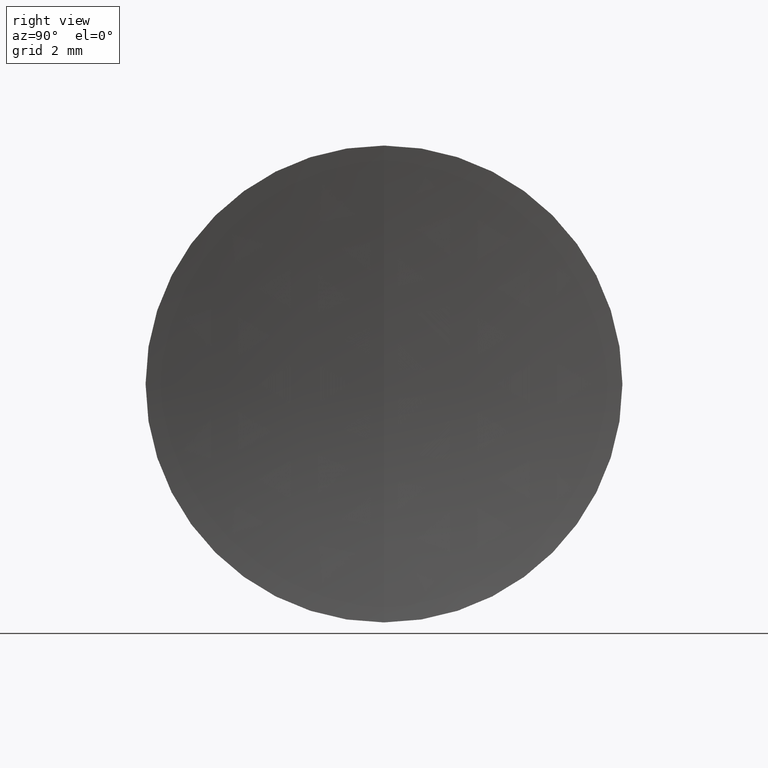
[diagram: clean part render]
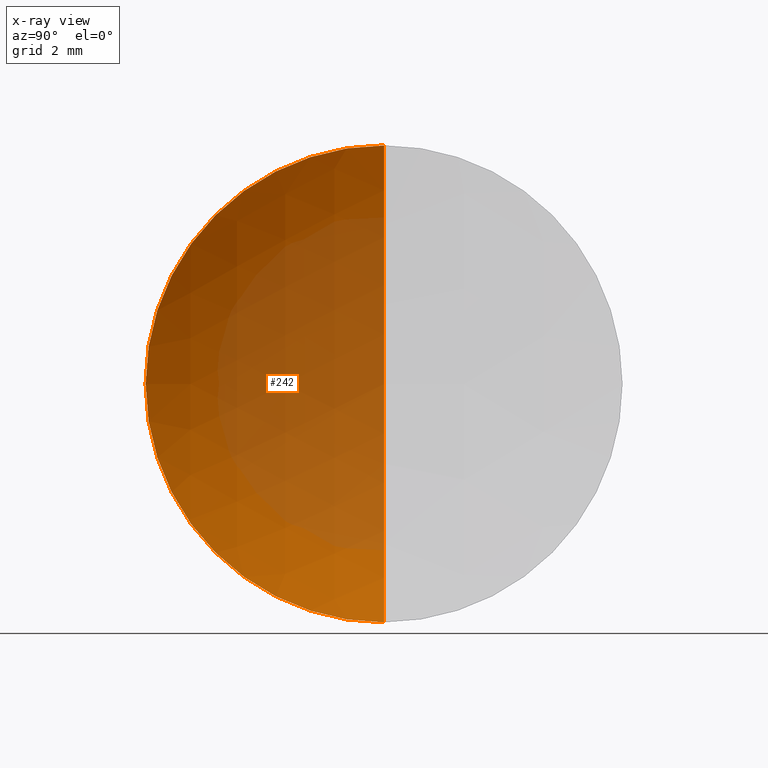
[diagram: x-ray — body ghosted, one internal face saturated and labeled with its STEP entity id]
A machine part, right view, then the same camera in x-ray: the body is ghosted and one INTERNAL B-rep face — a face not visible from any outside direction — is saturated and labeled: STEP entity #242.
In plain terms, the highlighted spherical surface has radius 13.09 mm.
Its self-contained STEP definition (entity closure, byte-faithful):
#2 = SPHERICAL_SURFACE ( 'NONE', #309, 13.08999999999999500 ) ;
#3 = VERTEX_POINT ( 'NONE', #164 ) ;
#4 = DIRECTION ( 'NONE',  ( 0.0000000000000000000, 0.0000000000000000000, 1.000000000000000000 ) ) ;
#6 = CARTESIAN_POINT ( 'NONE',  ( 230.6595650911643500, 0.0000000000000000000, 6.249999999999999100 ) ) ;
#13 = CARTESIAN_POINT ( 'NONE',  ( 242.1611128131016200, 0.0000000000000000000, -1.765486017027682300E-025 ) ) ;
#34 = EDGE_CURVE ( 'NONE', #3, #257, #115, .T. ) ;
#35 = CIRCLE ( 'NONE', #213, 13.08999999999999500 ) ;
#57 = EDGE_CURVE ( 'NONE', #257, #253, #177, .T. ) ;
#89 = DIRECTION ( 'NONE',  ( -2.249639673992786400E-032, -1.000000000000000000, -1.224646799147353200E-016 ) ) ;
#94 = FACE_OUTER_BOUND ( 'NONE', #292, .T. ) ;
#115 = CIRCLE ( 'NONE', #338, 6.250000000000041700 ) ;
#131 = DIRECTION ( 'NONE',  ( -0.0000000000000000000, 1.000000000000000000, 0.0000000000000000000 ) ) ;
#142 = DIRECTION ( 'NONE',  ( 0.0000000000000000000, 1.224646799147353000E-016, -1.000000000000000000 ) ) ;
#164 = CARTESIAN_POINT ( 'NONE',  ( 230.6595650911643500, 7.654042494671010900E-016, -6.250000000000085300 ) ) ;
#176 = CARTESIAN_POINT ( 'NONE',  ( 230.6595650911643500, 0.0000000000000000000, -4.252138290203425000E-014 ) ) ;
#177 = CIRCLE ( 'NONE', #327, 13.08999999999999500 ) ;
#179 = CARTESIAN_POINT ( 'NONE',  ( 229.0711128131016200, 0.0000000000000000000, 1.603062659907335600E-015 ) ) ;
#189 = CARTESIAN_POINT ( 'NONE',  ( 242.1611128131016200, 0.0000000000000000000, -1.765486017027682300E-025 ) ) ;
#195 = EDGE_CURVE ( 'NONE', #3, #253, #35, .T. ) ;
#211 = DIRECTION ( 'NONE',  ( 0.0000000000000000000, 0.0000000000000000000, -1.000000000000000000 ) ) ;
#213 = AXIS2_PLACEMENT_3D ( 'NONE', #189, #131, #312 ) ;
#242 = ADVANCED_FACE ( 'NONE', ( #94 ), #2, .F. ) ;
#253 = VERTEX_POINT ( 'NONE', #179 ) ;
#257 = VERTEX_POINT ( 'NONE', #6 ) ;
#264 = DIRECTION ( 'NONE',  ( -1.000000000000000000, -0.0000000000000000000, 1.836970198721029700E-016 ) ) ;
#266 = CARTESIAN_POINT ( 'NONE',  ( 242.1611128131016200, 0.0000000000000000000, -1.765486017027682300E-025 ) ) ;
#292 = EDGE_LOOP ( 'NONE', ( #301, #334, #296 ) ) ;
#296 = ORIENTED_EDGE ( 'NONE', *, *, #195, .T. ) ;
#301 = ORIENTED_EDGE ( 'NONE', *, *, #57, .F. ) ;
#309 = AXIS2_PLACEMENT_3D ( 'NONE', #13, #310, #211 ) ;
#310 = DIRECTION ( 'NONE',  ( -0.0000000000000000000, -1.000000000000000000, -0.0000000000000000000 ) ) ;
#312 = DIRECTION ( 'NONE',  ( 0.0000000000000000000, 0.0000000000000000000, 1.000000000000000000 ) ) ;
#327 = AXIS2_PLACEMENT_3D ( 'NONE', #266, #89, #142 ) ;
#334 = ORIENTED_EDGE ( 'NONE', *, *, #34, .F. ) ;
#338 = AXIS2_PLACEMENT_3D ( 'NONE', #176, #264, #4 ) ;